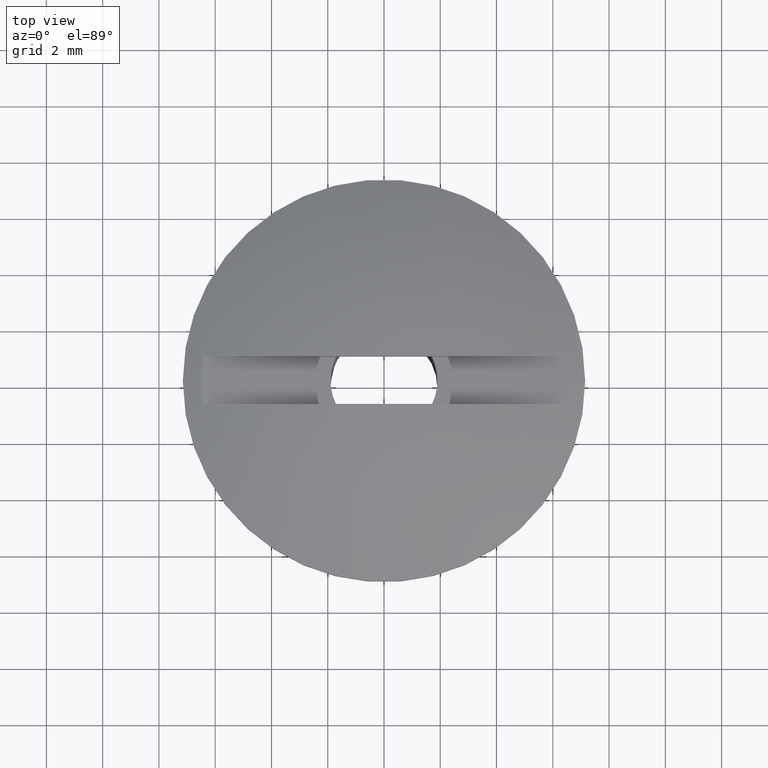
[diagram: clean part render]
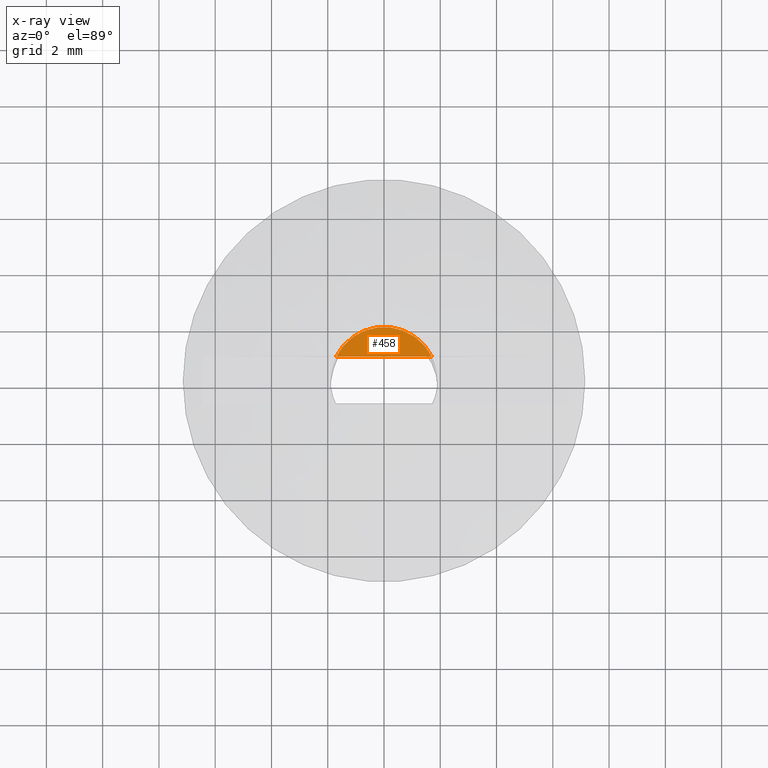
[diagram: x-ray — body ghosted, one internal face saturated and labeled with its STEP entity id]
A machine part, top view, then the same camera in x-ray: the body is ghosted and one INTERNAL B-rep face — a face not visible from any outside direction — is saturated and labeled: STEP entity #458.
In plain terms, the highlighted planar face has unit normal (0, 0, -1).
Its self-contained STEP definition (entity closure, byte-faithful):
#60 = EDGE_CURVE ( 'NONE', #1468, #1731, #834, .T. ) ;
#118 = CARTESIAN_POINT ( 'NONE',  ( 0.0000000000000000000, 0.0000000000000000000, 11.19406900000000100 ) ) ;
#162 = PLANE ( 'NONE',  #307 ) ;
#307 = AXIS2_PLACEMENT_3D ( 'NONE', #118, #664, #1398 ) ;
#458 = ADVANCED_FACE ( 'NONE', ( #1425 ), #162, .T. ) ;
#664 = DIRECTION ( 'NONE',  ( 0.0000000000000000000, 0.0000000000000000000, -1.000000000000000000 ) ) ;
#742 = DIRECTION ( 'NONE',  ( 0.0000000000000000000, 0.0000000000000000000, -1.000000000000000000 ) ) ;
#834 = CIRCLE ( 'NONE', #2643, 1.899999999999999900 ) ;
#1078 = EDGE_CURVE ( 'NONE', #1731, #1468, #2322, .T. ) ;
#1094 = CARTESIAN_POINT ( 'NONE',  ( -7.150000000001116800, 0.8499999999999999800, 11.19406900000000100 ) ) ;
#1366 = ORIENTED_EDGE ( 'NONE', *, *, #60, .T. ) ;
#1397 = EDGE_LOOP ( 'NONE', ( #1480, #1366 ) ) ;
#1398 = DIRECTION ( 'NONE',  ( -1.000000000000000000, 0.0000000000000000000, -0.0000000000000000000 ) ) ;
#1425 = FACE_OUTER_BOUND ( 'NONE', #1397, .T. ) ;
#1468 = VERTEX_POINT ( 'NONE', #2593 ) ;
#1480 = ORIENTED_EDGE ( 'NONE', *, *, #1078, .T. ) ;
#1584 = DIRECTION ( 'NONE',  ( -1.000000000000000000, 0.0000000000000000000, 0.0000000000000000000 ) ) ;
#1731 = VERTEX_POINT ( 'NONE', #2219 ) ;
#1782 = CARTESIAN_POINT ( 'NONE',  ( 0.0000000000000000000, 0.0000000000000000000, 11.19406900000000100 ) ) ;
#2219 = CARTESIAN_POINT ( 'NONE',  ( 1.699264546796643200, 0.8499999999999996400, 11.19406900000000100 ) ) ;
#2322 = LINE ( 'NONE', #1094, #2389 ) ;
#2325 = DIRECTION ( 'NONE',  ( -1.000000000000000000, 0.0000000000000000000, 0.0000000000000000000 ) ) ;
#2389 = VECTOR ( 'NONE', #2325, 1000.000000000000000 ) ;
#2593 = CARTESIAN_POINT ( 'NONE',  ( -1.699264546796643200, 0.8499999999999996400, 11.19406900000000100 ) ) ;
#2643 = AXIS2_PLACEMENT_3D ( 'NONE', #1782, #742, #1584 ) ;